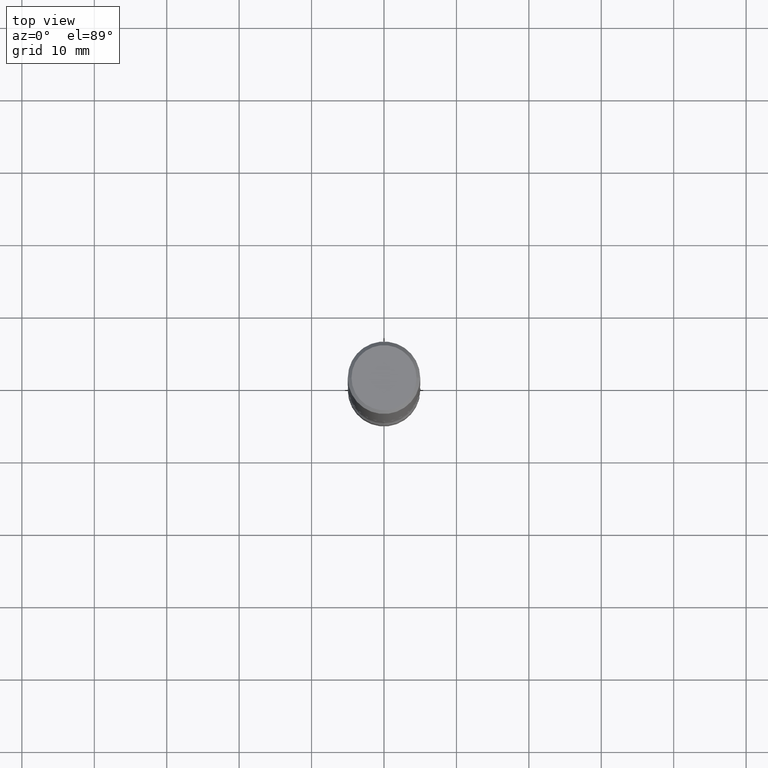
[diagram: clean part render]
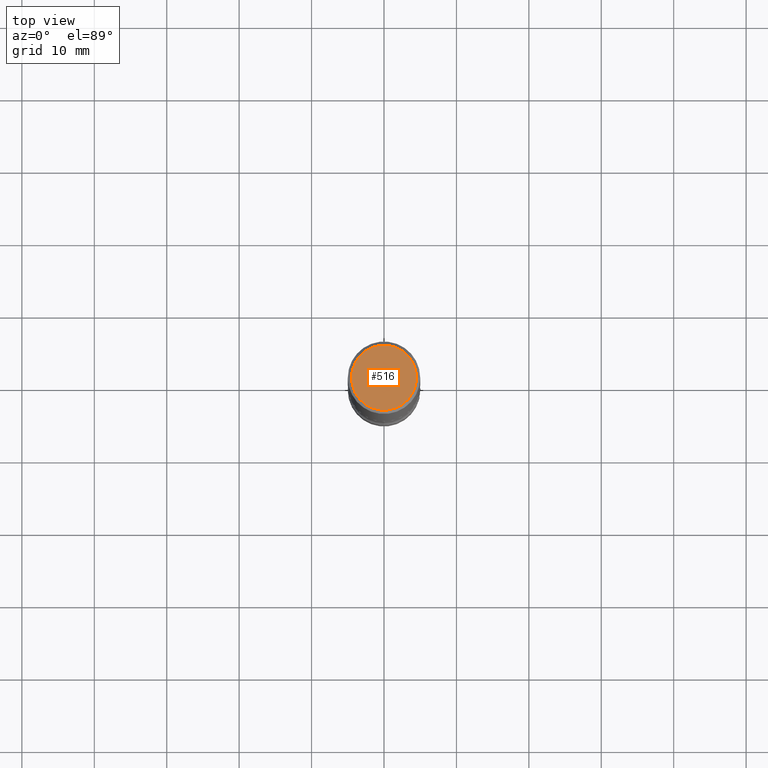
[diagram: same view with one face highlighted and labeled with its STEP entity id]
A machine part, top view. The second image highlights one B-rep face of the part: STEP entity #516.
In plain terms, the highlighted planar face has unit normal (0, -0, -1).
Its self-contained STEP definition (entity closure, byte-faithful):
#20 = ORIENTED_EDGE ( 'NONE', *, *, #554, .T. ) ;
#31 = CARTESIAN_POINT ( 'NONE',  ( 1.234936949548815012E-15, 0.1768499999999998407, -6.153342185293596592E-16 ) ) ;
#48 = EDGE_LOOP ( 'NONE', ( #525, #20 ) ) ;
#73 = PLANE ( 'NONE',  #91 ) ;
#91 = AXIS2_PLACEMENT_3D ( 'NONE', #31, #462, #251 ) ;
#155 = DIRECTION ( 'NONE',  ( -2.445468806185136597E-29, 3.491481338843145583E-15, 1.000000000000000000 ) ) ;
#159 = CARTESIAN_POINT ( 'NONE',  ( -1.043851414335219820E-46, 1.490343170380447200E-32, 4.268512490100411279E-18 ) ) ;
#160 = EDGE_CURVE ( 'NONE', #532, #232, #177, .T. ) ;
#167 = AXIS2_PLACEMENT_3D ( 'NONE', #210, #298, #470 ) ;
#177 = CIRCLE ( 'NONE', #167, 0.1768499999999998407 ) ;
#188 = CIRCLE ( 'NONE', #472, 0.1768499999999998407 ) ;
#208 = FACE_OUTER_BOUND ( 'NONE', #48, .T. ) ;
#210 = CARTESIAN_POINT ( 'NONE',  ( -1.043851414335219820E-46, 1.490343170380447200E-32, 4.268512490100411279E-18 ) ) ;
#232 = VERTEX_POINT ( 'NONE', #557 ) ;
#251 = DIRECTION ( 'NONE',  ( -1.000000000000000000, 6.982962677686265922E-15, -4.876176775795935793E-29 ) ) ;
#298 = DIRECTION ( 'NONE',  ( -2.445468806185136597E-29, 3.491481338843145583E-15, 1.000000000000000000 ) ) ;
#457 = DIRECTION ( 'NONE',  ( 1.000000000000000000, -6.982962677686266711E-15, 4.875932113059882493E-29 ) ) ;
#462 = DIRECTION ( 'NONE',  ( 2.438088387897960049E-29, -3.491481338843145188E-15, -1.000000000000000000 ) ) ;
#470 = DIRECTION ( 'NONE',  ( 1.000000000000000000, -6.982962677686266711E-15, 4.875932113059882493E-29 ) ) ;
#472 = AXIS2_PLACEMENT_3D ( 'NONE', #159, #155, #457 ) ;
#516 = ADVANCED_FACE ( 'NONE', ( #208 ), #73, .F. ) ;
#525 = ORIENTED_EDGE ( 'NONE', *, *, #160, .T. ) ;
#532 = VERTEX_POINT ( 'NONE', #546 ) ;
#546 = CARTESIAN_POINT ( 'NONE',  ( -0.1768499999999998407, 1.269851762937246464E-15, 4.268512490091652920E-18 ) ) ;
#554 = EDGE_CURVE ( 'NONE', #232, #532, #188, .T. ) ;
#557 = CARTESIAN_POINT ( 'NONE',  ( 0.1768499999999998407, -1.316798864272041352E-15, 4.268512490109333727E-18 ) ) ;